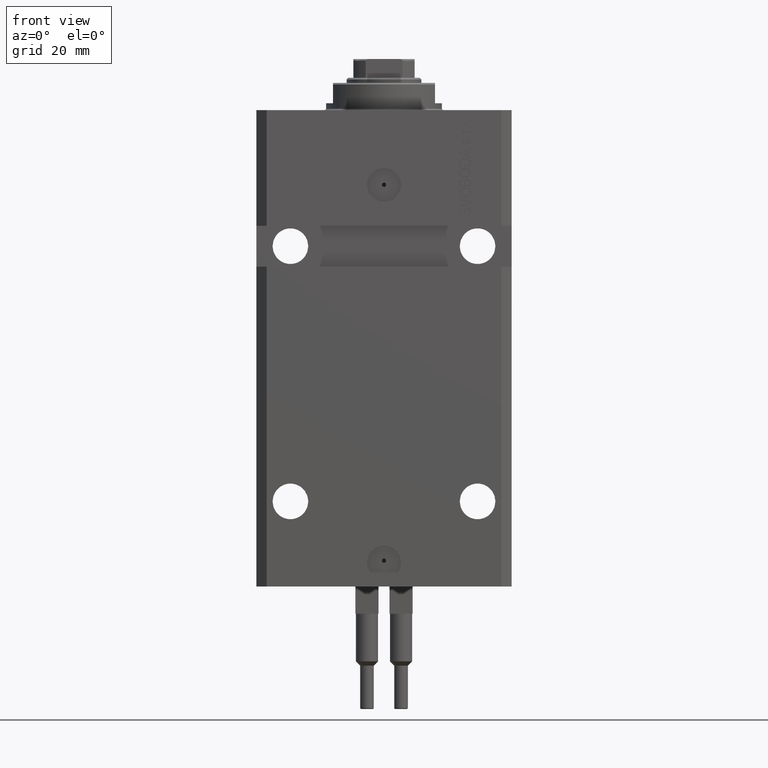
[diagram: clean part render]
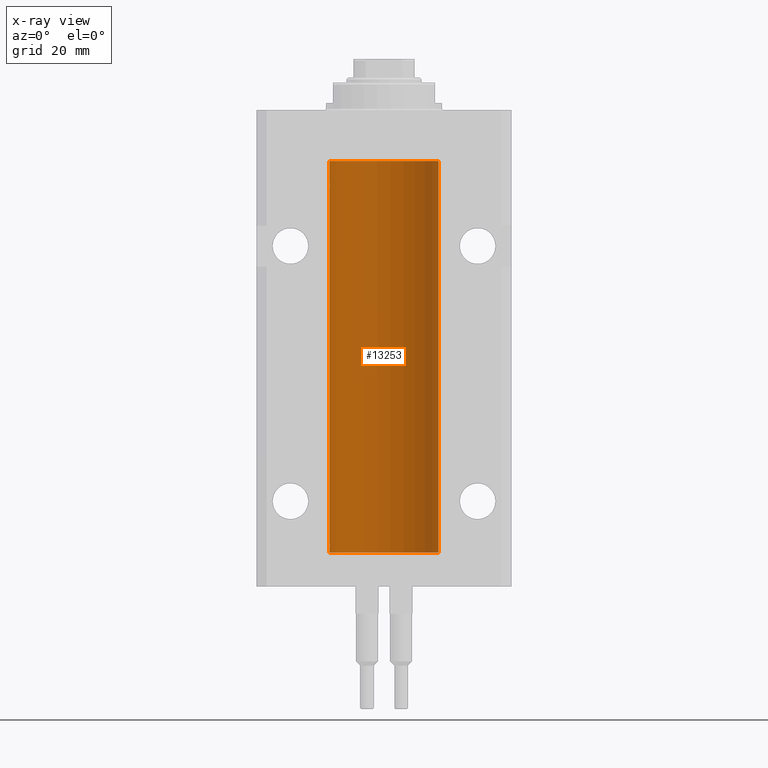
[diagram: x-ray — body ghosted, one internal face saturated and labeled with its STEP entity id]
A machine part, front view, then the same camera in x-ray: the body is ghosted and one INTERNAL B-rep face — a face not visible from any outside direction — is saturated and labeled: STEP entity #13253.
In plain terms, the highlighted cylindrical surface (partial cylindrical patch) has radius 16 mm, axis along (0, 0, 1).
Its self-contained STEP definition (entity closure, byte-faithful):
#571 = CARTESIAN_POINT ( 'NONE',  ( -15.99228023727723702, 0.5003781296993445871, -128.3834782955424032 ) ) ;
#651 = CARTESIAN_POINT ( 'NONE',  ( -15.99707730059171240, 0.3150375992092407373, -21.45402333202571654 ) ) ;
#2992 = CARTESIAN_POINT ( 'NONE',  ( -16.00000000000000000, 1.643679961284177128E-16, -21.37499999999999645 ) ) ;
#3059 = LINE ( 'NONE', #7670, #37961 ) ;
#3927 = CARTESIAN_POINT ( 'NONE',  ( -16.00000000000000000, 1.959434878635765131E-15, -130.0999999999999943 ) ) ;
#4189 = VERTEX_POINT ( 'NONE', #38079 ) ;
#5184 = EDGE_CURVE ( 'NONE', #4189, #42299, #12036, .T. ) ;
#5649 = ORIENTED_EDGE ( 'NONE', *, *, #26609, .F. ) ;
#5891 = DIRECTION ( 'NONE',  ( 0.000000000000000000, 0.000000000000000000, 1.000000000000000000 ) ) ;
#5993 = AXIS2_PLACEMENT_3D ( 'NONE', #10204, #22305, #17503 ) ;
#6800 = ORIENTED_EDGE ( 'NONE', *, *, #20561, .F. ) ;
#6822 = LINE ( 'NONE', #18020, #46817 ) ;
#6918 = CARTESIAN_POINT ( 'NONE',  ( -15.99999999999999289, 0.1631714642025817730, -128.6249999999999147 ) ) ;
#7173 = VERTEX_POINT ( 'NONE', #15439 ) ;
#7670 = CARTESIAN_POINT ( 'NONE',  ( -16.00000000000000000, 1.959434878635765131E-15, -130.0999999999999943 ) ) ;
#7720 = CARTESIAN_POINT ( 'NONE',  ( -15.99548640841683067, 0.3843705577988847377, -21.50046628527008608 ) ) ;
#7957 = CARTESIAN_POINT ( 'NONE',  ( -15.99711699979842017, 0.3253759916140657737, -22.55856151623175521 ) ) ;
#8435 = CARTESIAN_POINT ( 'NONE',  ( -15.99934216141748244, 0.1636497843296417787, -21.39126528029306229 ) ) ;
#9612 = EDGE_CURVE ( 'NONE', #31629, #7173, #35260, .T. ) ;
#10204 = CARTESIAN_POINT ( 'NONE',  ( 0.000000000000000000, 0.000000000000000000, -130.0999999999999943 ) ) ;
#10421 = LINE ( 'NONE', #25536, #10929 ) ;
#10578 = CARTESIAN_POINT ( 'NONE',  ( -15.99934216141748244, 0.1636497843296232380, -127.3912652802930694 ) ) ;
#10735 = CARTESIAN_POINT ( 'NONE',  ( -16.00000000000000000, -1.314639473218082033E-14, -127.3749999999999858 ) ) ;
#10929 = VECTOR ( 'NONE', #14091, 1000.000000000000000 ) ;
#11053 = CARTESIAN_POINT ( 'NONE',  ( -15.98844267028591482, 0.6088369347963276113, -128.1632473502432674 ) ) ;
#11290 = CARTESIAN_POINT ( 'NONE',  ( -16.00000000000000355, 0.08259886010188438599, -127.3749999999999574 ) ) ;
#11566 = DIRECTION ( 'NONE',  ( -0.000000000000000000, -0.000000000000000000, 1.000000000000000000 ) ) ;
#11662 = VERTEX_POINT ( 'NONE', #41631 ) ;
#12036 = CIRCLE ( 'NONE', #27626, 16.00000000000000000 ) ;
#12971 = DIRECTION ( 'NONE',  ( 1.000000000000000000, 0.000000000000000000, 0.000000000000000000 ) ) ;
#13215 = CARTESIAN_POINT ( 'NONE',  ( 0.000000000000000000, 0.000000000000000000, -130.0999999999999943 ) ) ;
#13253 = ADVANCED_FACE ( 'NONE', ( #39452 ), #13384, .F. ) ;
#13384 = CYLINDRICAL_SURFACE ( 'NONE', #5993, 16.00000000000000000 ) ;
#13951 = EDGE_LOOP ( 'NONE', ( #6800, #5649, #38093, #39052, #37305, #40416, #38486, #37360 ) ) ;
#14091 = DIRECTION ( 'NONE',  ( -0.000000000000000000, -0.000000000000000000, 1.000000000000000000 ) ) ;
#14710 = CARTESIAN_POINT ( 'NONE',  ( -15.98778717651346604, 0.6250289588122058815, -128.0813158568705603 ) ) ;
#15019 = CARTESIAN_POINT ( 'NONE',  ( -16.00000000000000711, 0.08259886010189904093, -21.37500000000000000 ) ) ;
#15439 = CARTESIAN_POINT ( 'NONE',  ( -16.00000000000013145, 3.685127038166941002E-13, -22.62500000000341771 ) ) ;
#15974 = CARTESIAN_POINT ( 'NONE',  ( -15.98779057735153941, 0.6249419637998100407, -21.83670145863507273 ) ) ;
#16150 = CARTESIAN_POINT ( 'NONE',  ( 0.000000000000000000, 0.000000000000000000, -15.00000000000000000 ) ) ;
#16466 = CARTESIAN_POINT ( 'NONE',  ( -16.00000000000013145, 3.685127464164956467E-13, -128.6250000000034390 ) ) ;
#16917 = CARTESIAN_POINT ( 'NONE',  ( -16.00000000000000000, 1.959434878635765131E-15, -15.00000000000000000 ) ) ;
#17503 = DIRECTION ( 'NONE',  ( 1.000000000000000000, 0.000000000000000000, 0.000000000000000000 ) ) ;
#18020 = CARTESIAN_POINT ( 'NONE',  ( -16.00000000000000000, 1.959434878635765131E-15, -130.0999999999999943 ) ) ;
#18113 = CARTESIAN_POINT ( 'NONE',  ( -15.99070426498503217, 0.5462220647145575869, -128.3146006461414288 ) ) ;
#19070 = CARTESIAN_POINT ( 'NONE',  ( -15.98779057735154296, 0.6249419637998029353, -127.8367014586350763 ) ) ;
#20561 = EDGE_CURVE ( 'NONE', #11662, #24165, #40963, .T. ) ;
#21777 = CARTESIAN_POINT ( 'NONE',  ( -16.00000000000013145, 3.685127464164956467E-13, -128.6250000000034390 ) ) ;
#22305 = DIRECTION ( 'NONE',  ( -0.000000000000000000, -0.000000000000000000, 1.000000000000000000 ) ) ;
#22581 = CARTESIAN_POINT ( 'NONE',  ( -15.98844267028591482, 0.6088369347963316081, -22.16324735024328518 ) ) ;
#23296 = CARTESIAN_POINT ( 'NONE',  ( -15.99228023727724413, 0.5003781296993413674, -22.38347829554236057 ) ) ;
#24165 = VERTEX_POINT ( 'NONE', #16466 ) ;
#25536 = CARTESIAN_POINT ( 'NONE',  ( 16.00000000000000000, 0.000000000000000000, -130.0999999999999943 ) ) ;
#26609 = EDGE_CURVE ( 'NONE', #32658, #11662, #35606, .T. ) ;
#26944 = VECTOR ( 'NONE', #33889, 1000.000000000000000 ) ;
#26955 = CARTESIAN_POINT ( 'NONE',  ( -16.00000000000013145, 3.685127038166941002E-13, -22.62500000000341771 ) ) ;
#27198 = CARTESIAN_POINT ( 'NONE',  ( -16.00000000000000000, 0.1631714642025800244, -22.62499999999985789 ) ) ;
#27337 = EDGE_CURVE ( 'NONE', #43679, #7173, #3059, .T. ) ;
#27455 = CARTESIAN_POINT ( 'NONE',  ( 16.00000000000000000, 0.000000000000000000, -130.0999999999999943 ) ) ;
#27626 = AXIS2_PLACEMENT_3D ( 'NONE', #16150, #42219, #46111 ) ;
#29570 = CARTESIAN_POINT ( 'NONE',  ( -15.99548640841682712, 0.3843705577988635880, -127.5004662852700932 ) ) ;
#30374 = CARTESIAN_POINT ( 'NONE',  ( -15.99070653155267685, 0.5573233280232986475, -21.67348148680506625 ) ) ;
#30611 = CARTESIAN_POINT ( 'NONE',  ( -15.99070426498503217, 0.5462220647145618058, -22.31460064614143590 ) ) ;
#31629 = VERTEX_POINT ( 'NONE', #2992 ) ;
#32658 = VERTEX_POINT ( 'NONE', #27455 ) ;
#33234 = CARTESIAN_POINT ( 'NONE',  ( -15.99707730059171240, 0.3150375992092247501, -127.4540233320256561 ) ) ;
#33889 = DIRECTION ( 'NONE',  ( -0.000000000000000000, -0.000000000000000000, 1.000000000000000000 ) ) ;
#34040 = EDGE_CURVE ( 'NONE', #43679, #24165, #42703, .T. ) ;
#34265 = CARTESIAN_POINT ( 'NONE',  ( -16.00000000000000000, 1.643679961284177128E-16, -21.37499999999999645 ) ) ;
#35260 = B_SPLINE_CURVE_WITH_KNOTS ( 'NONE', 3,
 ( #34265, #15019, #8435, #651, #7720, #30374, #15974, #38152, #22581, #30611, #23296, #7957, #27198, #26955 ),
 .UNSPECIFIED., .F., .F.,
 ( 4, 2, 2, 2, 2, 2, 4 ),
 ( 1.597328219370744179E-19, 0.0002442776652680942405, 0.0004885553305361882643, 0.0009771106610723839011, 0.001221388326340481665, 0.001465665991608579430, 0.001954221322144767369 ),
 .UNSPECIFIED. ) ;
#35606 = CIRCLE ( 'NONE', #41034, 16.00000000000000000 ) ;
#37268 = EDGE_CURVE ( 'NONE', #32658, #4189, #10421, .T. ) ;
#37305 = ORIENTED_EDGE ( 'NONE', *, *, #40418, .F. ) ;
#37360 = ORIENTED_EDGE ( 'NONE', *, *, #34040, .T. ) ;
#37364 = CARTESIAN_POINT ( 'NONE',  ( -15.99711699979841661, 0.3253759916140733233, -128.5585615162317765 ) ) ;
#37961 = VECTOR ( 'NONE', #11566, 1000.000000000000000 ) ;
#38079 = CARTESIAN_POINT ( 'NONE',  ( 16.00000000000000000, 0.000000000000000000, -15.00000000000000000 ) ) ;
#38093 = ORIENTED_EDGE ( 'NONE', *, *, #37268, .T. ) ;
#38152 = CARTESIAN_POINT ( 'NONE',  ( -15.98778717651346071, 0.6250289588122140971, -22.08131585687052478 ) ) ;
#38486 = ORIENTED_EDGE ( 'NONE', *, *, #27337, .F. ) ;
#39052 = ORIENTED_EDGE ( 'NONE', *, *, #5184, .T. ) ;
#39452 = FACE_OUTER_BOUND ( 'NONE', #13951, .T. ) ;
#40416 = ORIENTED_EDGE ( 'NONE', *, *, #9612, .T. ) ;
#40418 = EDGE_CURVE ( 'NONE', #31629, #42299, #6822, .T. ) ;
#40963 = LINE ( 'NONE', #3927, #26944 ) ;
#41021 = CARTESIAN_POINT ( 'NONE',  ( -15.99070653155267685, 0.5573233280232815501, -127.6734814868050449 ) ) ;
#41034 = AXIS2_PLACEMENT_3D ( 'NONE', #13215, #5891, #12971 ) ;
#41631 = CARTESIAN_POINT ( 'NONE',  ( -16.00000000000000000, 1.959434878635765131E-15, -130.0999999999999943 ) ) ;
#42219 = DIRECTION ( 'NONE',  ( 0.000000000000000000, 0.000000000000000000, 1.000000000000000000 ) ) ;
#42299 = VERTEX_POINT ( 'NONE', #16917 ) ;
#42703 = B_SPLINE_CURVE_WITH_KNOTS ( 'NONE', 3,
 ( #48086, #11290, #10578, #33234, #29570, #41021, #19070, #14710, #11053, #18113, #571, #37364, #6918, #21777 ),
 .UNSPECIFIED., .F., .F.,
 ( 4, 2, 2, 2, 2, 2, 4 ),
 ( 2.457764170500729066E-18, 0.0002442776652680811759, 0.0004885553305361599666, 0.0009771106610723173311, 0.001221388326340437647, 0.001465665991608557962, 0.001954221322144799027 ),
 .UNSPECIFIED. ) ;
#43679 = VERTEX_POINT ( 'NONE', #10735 ) ;
#46111 = DIRECTION ( 'NONE',  ( 1.000000000000000000, 0.000000000000000000, 0.000000000000000000 ) ) ;
#46817 = VECTOR ( 'NONE', #47745, 1000.000000000000000 ) ;
#47745 = DIRECTION ( 'NONE',  ( -0.000000000000000000, -0.000000000000000000, 1.000000000000000000 ) ) ;
#48086 = CARTESIAN_POINT ( 'NONE',  ( -16.00000000000000000, -1.314639473218082033E-14, -127.3749999999999858 ) ) ;